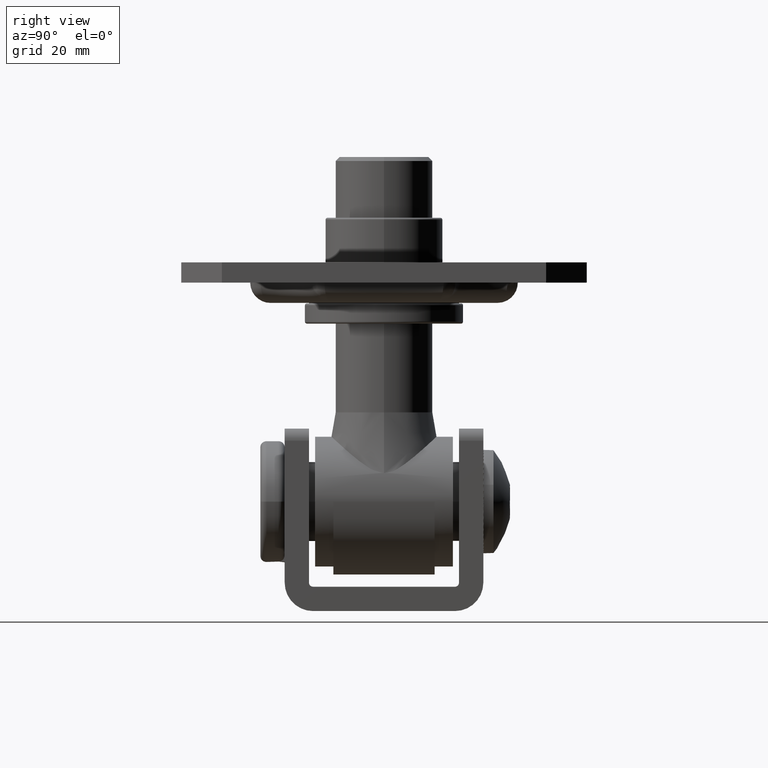
[diagram: clean part render]
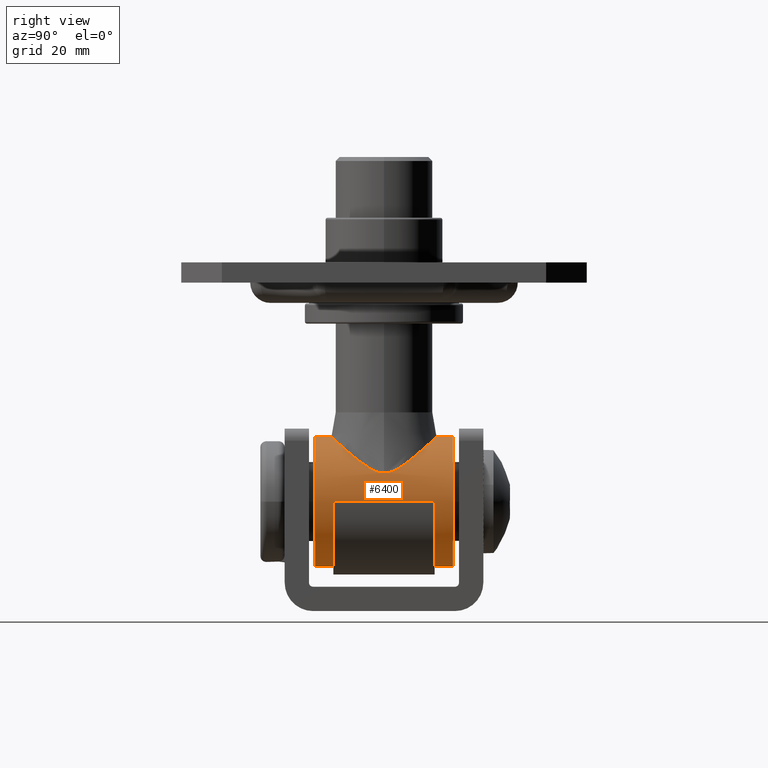
[diagram: same view with one face highlighted and labeled with its STEP entity id]
A machine part, right view. The second image highlights one B-rep face of the part: STEP entity #6400.
In plain terms, the highlighted cylindrical surface (partial cylindrical patch) has radius 16 mm, axis along (0, 1, 0).
Its self-contained STEP definition (entity closure, byte-faithful):
#72 = AXIS2_PLACEMENT_3D ( 'NONE', #14229, #8902, #15939 ) ;
#159 = CARTESIAN_POINT ( 'NONE',  ( 0.0000000000000000000, -17.00000000000000000, -16.00000000000000000 ) ) ;
#230 = CARTESIAN_POINT ( 'NONE',  ( 0.0000000000000000000, 12.50000000000000000, -16.00000000000000000 ) ) ;
#389 = CARTESIAN_POINT ( 'NONE',  ( -13.21602289178644600, -4.801149830408786700, 9.024675190932733000 ) ) ;
#421 = VERTEX_POINT ( 'NONE', #9619 ) ;
#479 = CARTESIAN_POINT ( 'NONE',  ( -14.36059214336729400, -0.4952040091087420200, 7.055150786336528600 ) ) ;
#558 = CARTESIAN_POINT ( 'NONE',  ( -12.64338464806407300, -5.899818394293129500, 9.827355603280977900 ) ) ;
#629 = CARTESIAN_POINT ( 'NONE',  ( -10.61966705674688400, -8.486980950936315400, 11.97379655446275000 ) ) ;
#847 = CARTESIAN_POINT ( 'NONE',  ( -0.9739916107054201700, 12.92632075194840100, 15.97772398258610900 ) ) ;
#958 = EDGE_CURVE ( 'NONE', #21480, #1325, #3338, .T. ) ;
#1062 = CARTESIAN_POINT ( 'NONE',  ( -16.00000000000000000, 12.50000000000000000, 8.673617379884035500E-015 ) ) ;
#1315 = ORIENTED_EDGE ( 'NONE', *, *, #3502, .T. ) ;
#1325 = VERTEX_POINT ( 'NONE', #18504 ) ;
#1457 = DIRECTION ( 'NONE',  ( 0.0000000000000000000, 0.0000000000000000000, 1.000000000000000000 ) ) ;
#1710 = CYLINDRICAL_SURFACE ( 'NONE', #11527, 16.00000000000000000 ) ;
#2246 = ORIENTED_EDGE ( 'NONE', *, *, #13213, .F. ) ;
#2453 = CARTESIAN_POINT ( 'NONE',  ( -13.85008887611803600, -3.230640819407841800, 8.014728776402066000 ) ) ;
#2493 = CARTESIAN_POINT ( 'NONE',  ( -9.418818992003918900, 9.589836602010988600, 12.94047858997327100 ) ) ;
#2567 = CARTESIAN_POINT ( 'NONE',  ( -6.466614099915449100, 11.47667494985324600, 14.64167764475632600 ) ) ;
#2705 = CARTESIAN_POINT ( 'NONE',  ( -16.00000000000000000, -12.50000000000000000, 8.673617379884035500E-015 ) ) ;
#2767 = CARTESIAN_POINT ( 'NONE',  ( 1.959434462373779800E-015, 12.95030664194722200, 16.00000000000000000 ) ) ;
#2802 = CARTESIAN_POINT ( 'NONE',  ( 1.959434462373779800E-015, 12.95030664194722200, 16.00000000000000000 ) ) ;
#3030 = ORIENTED_EDGE ( 'NONE', *, *, #20380, .F. ) ;
#3034 = VECTOR ( 'NONE', #11287, 1000.000000000000000 ) ;
#3129 = CARTESIAN_POINT ( 'NONE',  ( -13.22602177685226700, 4.780326386978693200, 9.009972746427871800 ) ) ;
#3338 = CIRCLE ( 'NONE', #21840, 16.00000000000000000 ) ;
#3373 = VECTOR ( 'NONE', #15102, 1000.000000000000000 ) ;
#3502 = EDGE_CURVE ( 'NONE', #6234, #14839, #7299, .T. ) ;
#3616 = CARTESIAN_POINT ( 'NONE',  ( 0.0000000000000000000, 17.00000000000000000, -16.00000000000000000 ) ) ;
#3987 = CARTESIAN_POINT ( 'NONE',  ( -14.29607687870768700, -1.224008810852781600, 7.185271387234304400 ) ) ;
#4025 = ORIENTED_EDGE ( 'NONE', *, *, #20516, .T. ) ;
#4214 = CARTESIAN_POINT ( 'NONE',  ( -6.022565946272988100, -11.68264532709573800, 14.83026596138718200 ) ) ;
#4276 = CARTESIAN_POINT ( 'NONE',  ( -7.649273341732145700, 10.83717148052618700, 14.05951027074636000 ) ) ;
#4371 = EDGE_CURVE ( 'NONE', #19343, #16383, #16369, .T. ) ;
#4510 = AXIS2_PLACEMENT_3D ( 'NONE', #21658, #9913, #21878 ) ;
#4544 = ORIENTED_EDGE ( 'NONE', *, *, #19562, .T. ) ;
#4560 = CARTESIAN_POINT ( 'NONE',  ( -14.36087637835378100, 0.4887487161785048500, 7.054567833647918300 ) ) ;
#4616 = CARTESIAN_POINT ( 'NONE',  ( -12.65635510877974000, 5.878074087473883000, 9.810490257527300500 ) ) ;
#4692 = CARTESIAN_POINT ( 'NONE',  ( -14.37013227026878300, 0.2448142245451556400, 7.035573788610249400 ) ) ;
#5100 = CARTESIAN_POINT ( 'NONE',  ( 0.0000000000000000000, 17.00000000000000000, -16.00000000000000000 ) ) ;
#5451 = LINE ( 'NONE', #6246, #21585 ) ;
#5607 = CARTESIAN_POINT ( 'NONE',  ( -14.22619847073909900, -1.693352005733906000, 7.322650893035185700 ) ) ;
#5749 = LINE ( 'NONE', #5100, #13332 ) ;
#5754 = CARTESIAN_POINT ( 'NONE',  ( -8.727182448398648900, -10.14789768064235500, 13.43706696347478400 ) ) ;
#5791 = CIRCLE ( 'NONE', #72, 16.00000000000000000 ) ;
#6172 = CARTESIAN_POINT ( 'NONE',  ( -14.19357844377577200, 1.915413211018429200, 7.386845820059106900 ) ) ;
#6234 = VERTEX_POINT ( 'NONE', #21565 ) ;
#6241 = CARTESIAN_POINT ( 'NONE',  ( -14.09530552269350100, 2.360044224998334400, 7.575158578740383700 ) ) ;
#6246 = CARTESIAN_POINT ( 'NONE',  ( 1.959434878635765100E-015, 17.00000000000000000, 16.00000000000000000 ) ) ;
#6383 = CARTESIAN_POINT ( 'NONE',  ( 0.0000000000000000000, -12.50000000000000000, -16.00000000000000000 ) ) ;
#6395 = CARTESIAN_POINT ( 'NONE',  ( -14.32435262376442100, 0.9749460764327704300, 7.128437387250663400 ) ) ;
#6400 = ADVANCED_FACE ( 'NONE', ( #9506 ), #1710, .T. ) ;
#6454 = CARTESIAN_POINT ( 'NONE',  ( -10.67719620747689600, 8.454049897100237100, 11.94297698895290700 ) ) ;
#7032 = VECTOR ( 'NONE', #14654, 1000.000000000000000 ) ;
#7235 = DIRECTION ( 'NONE',  ( 0.0000000000000000000, 1.000000000000000000, 0.0000000000000000000 ) ) ;
#7299 = LINE ( 'NONE', #1062, #7032 ) ;
#7389 = CARTESIAN_POINT ( 'NONE',  ( 0.0000000000000000000, 12.50000000000000000, 0.0000000000000000000 ) ) ;
#7390 = VERTEX_POINT ( 'NONE', #2802 ) ;
#7491 = CARTESIAN_POINT ( 'NONE',  ( -7.625748743198554000, -10.85119660894329700, 14.07222713797434100 ) ) ;
#7539 = CARTESIAN_POINT ( 'NONE',  ( -4.756817758592143600, 12.19883437182242000, 15.30417261599058600 ) ) ;
#7595 = ORIENTED_EDGE ( 'NONE', *, *, #12660, .T. ) ;
#7683 = AXIS2_PLACEMENT_3D ( 'NONE', #7389, #7235, #15784 ) ;
#7778 = CARTESIAN_POINT ( 'NONE',  ( -1.700153802505209200, 12.85469765239082900, 15.91127140985864800 ) ) ;
#7850 = CARTESIAN_POINT ( 'NONE',  ( -2.423908881441438900, 12.75324303551535200, 15.81720243329187000 ) ) ;
#8068 = CARTESIAN_POINT ( 'NONE',  ( -9.745874435656558500, 9.313149096503321900, 12.69555969767857200 ) ) ;
#8112 = ORIENTED_EDGE ( 'NONE', *, *, #958, .F. ) ;
#8421 = DIRECTION ( 'NONE',  ( 0.0000000000000000000, 1.000000000000000000, 0.0000000000000000000 ) ) ;
#8852 = DIRECTION ( 'NONE',  ( 0.0000000000000000000, 0.0000000000000000000, -1.000000000000000000 ) ) ;
#8902 = DIRECTION ( 'NONE',  ( 0.0000000000000000000, 1.000000000000000000, 0.0000000000000000000 ) ) ;
#9045 = VERTEX_POINT ( 'NONE', #6383 ) ;
#9168 = CARTESIAN_POINT ( 'NONE',  ( -11.45100730578209400, -7.556691287489495100, 11.18076508501116400 ) ) ;
#9227 = LINE ( 'NONE', #12850, #3034 ) ;
#9308 = CARTESIAN_POINT ( 'NONE',  ( -6.047908045710875600, 11.67150644914960400, 14.82005607049950600 ) ) ;
#9332 = CARTESIAN_POINT ( 'NONE',  ( 1.959434424252865500E-015, -12.95030664194722200, 16.00000000000000000 ) ) ;
#9405 = CARTESIAN_POINT ( 'NONE',  ( -6.441204340439239400, -11.48895017750733900, 14.65289951957588400 ) ) ;
#9506 = FACE_OUTER_BOUND ( 'NONE', #21048, .T. ) ;
#9619 = CARTESIAN_POINT ( 'NONE',  ( -14.37013227026879000, 2.180969929334028300E-018, 7.035573788610246700 ) ) ;
#9677 = CARTESIAN_POINT ( 'NONE',  ( -13.85545869220217300, 3.214249133648106900, 8.005431262575253700 ) ) ;
#9913 = DIRECTION ( 'NONE',  ( 0.0000000000000000000, 1.000000000000000000, 0.0000000000000000000 ) ) ;
#9915 = DIRECTION ( 'NONE',  ( 0.0000000000000000000, -1.000000000000000000, 0.0000000000000000000 ) ) ;
#10809 = EDGE_CURVE ( 'NONE', #9045, #14839, #13440, .T. ) ;
#10834 = ORIENTED_EDGE ( 'NONE', *, *, #21041, .T. ) ;
#10869 = CARTESIAN_POINT ( 'NONE',  ( -14.03044140594113300, -2.592336830077414800, 7.691678865070144000 ) ) ;
#11150 = CARTESIAN_POINT ( 'NONE',  ( -0.4879649520133941800, 12.95030664194722500, 16.00000000000001400 ) ) ;
#11173 = CARTESIAN_POINT ( 'NONE',  ( -2.415156128726731600, -12.76067267719356700, 15.82405441227312600 ) ) ;
#11287 = DIRECTION ( 'NONE',  ( 0.0000000000000000000, -1.000000000000000000, 0.0000000000000000000 ) ) ;
#11527 = AXIS2_PLACEMENT_3D ( 'NONE', #19021, #19237, #8852 ) ;
#11616 = ORIENTED_EDGE ( 'NONE', *, *, #18485, .F. ) ;
#12110 = DIRECTION ( 'NONE',  ( 0.0000000000000000000, -1.000000000000000000, 0.0000000000000000000 ) ) ;
#12462 = CARTESIAN_POINT ( 'NONE',  ( -11.18496473187583400, -7.872414951113645600, 11.44751921904971500 ) ) ;
#12539 = ORIENTED_EDGE ( 'NONE', *, *, #10809, .F. ) ;
#12575 = CIRCLE ( 'NONE', #7683, 16.00000000000000000 ) ;
#12588 = ORIENTED_EDGE ( 'NONE', *, *, #4371, .F. ) ;
#12617 = CARTESIAN_POINT ( 'NONE',  ( -13.39264271806654300, -4.420788288017975600, 8.759328699364830900 ) ) ;
#12629 = CARTESIAN_POINT ( 'NONE',  ( 1.959434878635765100E-015, -17.00000000000000000, 16.00000000000000000 ) ) ;
#12660 = EDGE_CURVE ( 'NONE', #13690, #16383, #5791, .T. ) ;
#12802 = CARTESIAN_POINT ( 'NONE',  ( -8.739544608729012500, 10.11497769520662600, 13.40859788992593200 ) ) ;
#12850 = CARTESIAN_POINT ( 'NONE',  ( 0.0000000000000000000, 17.00000000000000000, -16.00000000000000000 ) ) ;
#12891 = CARTESIAN_POINT ( 'NONE',  ( -4.740467467289788000, -12.20387242224812000, 15.30883158318468200 ) ) ;
#13081 = CARTESIAN_POINT ( 'NONE',  ( -2.665261371808574700, 12.71126432944758200, 15.77830267117884900 ) ) ;
#13213 = EDGE_CURVE ( 'NONE', #421, #19343, #19526, .T. ) ;
#13332 = VECTOR ( 'NONE', #12110, 1000.000000000000000 ) ;
#13440 = CIRCLE ( 'NONE', #4510, 16.00000000000000000 ) ;
#13473 = CARTESIAN_POINT ( 'NONE',  ( 1.959434878635765100E-015, 17.00000000000000000, 16.00000000000000000 ) ) ;
#13690 = VERTEX_POINT ( 'NONE', #159 ) ;
#14229 = CARTESIAN_POINT ( 'NONE',  ( 0.0000000000000000000, -17.00000000000000000, 0.0000000000000000000 ) ) ;
#14258 = CARTESIAN_POINT ( 'NONE',  ( -14.37013227026879000, -0.2461521886286288100, 7.035573788610253000 ) ) ;
#14392 = CARTESIAN_POINT ( 'NONE',  ( -10.32457508511419600, -8.781316349645907200, 12.22946493516243800 ) ) ;
#14589 = CARTESIAN_POINT ( 'NONE',  ( -7.266010316211065000, 11.06001050577770800, 14.26186931138049600 ) ) ;
#14654 = DIRECTION ( 'NONE',  ( 0.0000000000000000000, -1.000000000000000000, 0.0000000000000000000 ) ) ;
#14758 = CARTESIAN_POINT ( 'NONE',  ( -0.9701484662845657500, -12.92649654103047800, 15.97788732500519300 ) ) ;
#14830 = B_SPLINE_CURVE_WITH_KNOTS ( 'NONE', 3,
 ( #2767, #11150, #847, #7778, #21517, #7850, #13081, #17892, #7539, #9308, #2567, #14589, #4276, #21289, #12802, #2493, #8068, #6454, #16615, #16754, #4616, #3129, #16542, #18564, #9677, #6241, #6172, #18279, #6395, #4560, #4692, #20088 ),
 .UNSPECIFIED., .F., .F.,
 ( 4, 2, 2, 2, 2, 2, 2, 2, 2, 2, 2, 2, 2, 2, 2, 4 ),
 ( 0.05908301512928978300, 0.06052527536577973600, 0.06124640548402470600, 0.06196753560226968300, 0.06485205607524958900, 0.06629431631173954300, 0.06773657654822949600, 0.06917883678471945000, 0.07062109702120941700, 0.07350561749418932400, 0.07639013796716923000, 0.07783239820365918400, 0.07927465844014913700, 0.08071691867663910400, 0.08143804879488407400, 0.08215917891312905800 ),
 .UNSPECIFIED. ) ;
#14839 = VERTEX_POINT ( 'NONE', #2705 ) ;
#15102 = DIRECTION ( 'NONE',  ( 0.0000000000000000000, -1.000000000000000000, 0.0000000000000000000 ) ) ;
#15124 = CARTESIAN_POINT ( 'NONE',  ( 0.0000000000000000000, 17.00000000000000000, 0.0000000000000000000 ) ) ;
#15784 = DIRECTION ( 'NONE',  ( 0.0000000000000000000, 0.0000000000000000000, 1.000000000000000000 ) ) ;
#15939 = DIRECTION ( 'NONE',  ( 0.0000000000000000000, 0.0000000000000000000, 1.000000000000000000 ) ) ;
#15968 = CARTESIAN_POINT ( 'NONE',  ( -14.32340457749537100, -0.9848041524298384300, 7.130346459708116300 ) ) ;
#16136 = CARTESIAN_POINT ( 'NONE',  ( -9.398591361373505000, -9.629100803747128600, 12.97278434169120900 ) ) ;
#16202 = CARTESIAN_POINT ( 'NONE',  ( -13.70937776139252900, -3.635738398424943600, 8.254797370785858800 ) ) ;
#16270 = CARTESIAN_POINT ( 'NONE',  ( -3.841498156431065500, -12.47772885909057900, 15.56205643830414200 ) ) ;
#16369 = LINE ( 'NONE', #13473, #3373 ) ;
#16383 = VERTEX_POINT ( 'NONE', #12629 ) ;
#16542 = CARTESIAN_POINT ( 'NONE',  ( -13.40107670495349400, 4.401589247806455800, 8.746356600610994300 ) ) ;
#16615 = CARTESIAN_POINT ( 'NONE',  ( -11.22998834525346900, 7.846343840998543800, 11.41998609552967800 ) ) ;
#16754 = CARTESIAN_POINT ( 'NONE',  ( -12.21953706986148600, 6.557875009685329100, 10.35430511695019000 ) ) ;
#17210 = CARTESIAN_POINT ( 'NONE',  ( 1.959434424252865500E-015, -12.95030664194722200, 16.00000000000000000 ) ) ;
#17765 = CARTESIAN_POINT ( 'NONE',  ( -12.20296596751206100, -6.582942053735061800, 10.37438800165387900 ) ) ;
#17892 = CARTESIAN_POINT ( 'NONE',  ( -3.854053592266005500, 12.47439037997783600, 15.55896926927018600 ) ) ;
#18075 = CARTESIAN_POINT ( 'NONE',  ( -1.933774554781638100, -12.83185577949143400, 15.89007826879638700 ) ) ;
#18279 = CARTESIAN_POINT ( 'NONE',  ( -14.29703347392302400, 1.216054682399883200, 7.183357425171027300 ) ) ;
#18485 = EDGE_CURVE ( 'NONE', #1325, #7390, #5451, .T. ) ;
#18504 = CARTESIAN_POINT ( 'NONE',  ( 1.959434878635765100E-015, 17.00000000000000000, 16.00000000000000000 ) ) ;
#18564 = CARTESIAN_POINT ( 'NONE',  ( -13.71540194815771400, 3.619021740903879200, 8.244717098698430400 ) ) ;
#19021 = CARTESIAN_POINT ( 'NONE',  ( 0.0000000000000000000, 17.00000000000000000, 0.0000000000000000000 ) ) ;
#19237 = DIRECTION ( 'NONE',  ( 0.0000000000000000000, -1.000000000000000000, 0.0000000000000000000 ) ) ;
#19343 = VERTEX_POINT ( 'NONE', #17210 ) ;
#19526 = B_SPLINE_CURVE_WITH_KNOTS ( 'NONE', 3,
 ( #21024, #14258, #479, #15968, #3987, #5607, #19549, #21101, #10869, #2453, #16202, #12617, #389, #558, #17765, #9168, #12462, #629, #14392, #16136, #5754, #7491, #19624, #9405, #4214, #12891, #16270, #11173, #18075, #14758, #21393, #9332 ),
 .UNSPECIFIED., .F., .F.,
 ( 4, 2, 2, 2, 2, 2, 2, 2, 2, 2, 2, 2, 2, 2, 2, 4 ),
 ( 0.08215917891312905800, 0.08288425016755401900, 0.08360932142197899400, 0.08433439267640395500, 0.08505946393082891600, 0.08650960643967885200, 0.08795974894852877400, 0.09086003396622863200, 0.09231017647507855400, 0.09376031898392849000, 0.09666060400162833400, 0.09811074651047825600, 0.09956088901932817800, 0.1024611740370280400, 0.1039113165458779600, 0.1053614590547278800 ),
 .UNSPECIFIED. ) ;
#19549 = CARTESIAN_POINT ( 'NONE',  ( -14.18340383209626200, -1.924547991957384200, 7.405537811633071700 ) ) ;
#19562 = EDGE_CURVE ( 'NONE', #21480, #20110, #9227, .T. ) ;
#19624 = CARTESIAN_POINT ( 'NONE',  ( -7.242780174365739400, -11.07303046749623300, 14.27370705289607100 ) ) ;
#20088 = CARTESIAN_POINT ( 'NONE',  ( -14.37013227026879000, 2.180969929334028300E-018, 7.035573788610246700 ) ) ;
#20110 = VERTEX_POINT ( 'NONE', #230 ) ;
#20380 = EDGE_CURVE ( 'NONE', #7390, #421, #14830, .T. ) ;
#20516 = EDGE_CURVE ( 'NONE', #9045, #13690, #5749, .T. ) ;
#21024 = CARTESIAN_POINT ( 'NONE',  ( -14.37013227026879000, 2.180969929334028300E-018, 7.035573788610246700 ) ) ;
#21041 = EDGE_CURVE ( 'NONE', #20110, #6234, #12575, .T. ) ;
#21048 = EDGE_LOOP ( 'NONE', ( #11616, #8112, #4544, #10834, #1315, #12539, #4025, #7595, #12588, #2246, #3030 ) ) ;
#21101 = CARTESIAN_POINT ( 'NONE',  ( -14.08539825844383100, -2.374379976438650200, 7.590289220107329100 ) ) ;
#21289 = CARTESIAN_POINT ( 'NONE',  ( -8.386046174762936900, 10.36465827937866800, 13.63288088646344900 ) ) ;
#21393 = CARTESIAN_POINT ( 'NONE',  ( -0.4861711528550720100, -12.95030664194721700, 15.99999999999999600 ) ) ;
#21480 = VERTEX_POINT ( 'NONE', #3616 ) ;
#21517 = CARTESIAN_POINT ( 'NONE',  ( -1.941727415638019800, 12.82487179064025400, 15.88360543845838500 ) ) ;
#21565 = CARTESIAN_POINT ( 'NONE',  ( -16.00000000000000000, 12.50000000000000000, 1.756407519426517200E-014 ) ) ;
#21585 = VECTOR ( 'NONE', #9915, 1000.000000000000000 ) ;
#21658 = CARTESIAN_POINT ( 'NONE',  ( 0.0000000000000000000, -12.50000000000000000, 0.0000000000000000000 ) ) ;
#21840 = AXIS2_PLACEMENT_3D ( 'NONE', #15124, #8421, #1457 ) ;
#21878 = DIRECTION ( 'NONE',  ( 0.0000000000000000000, 0.0000000000000000000, 1.000000000000000000 ) ) ;